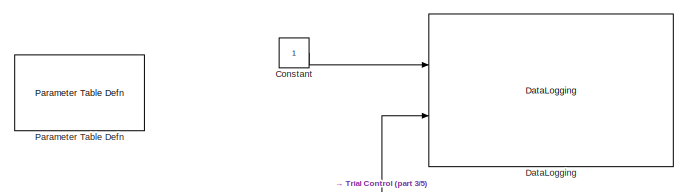
[diagram: root canvas - part 1/5, top center region]
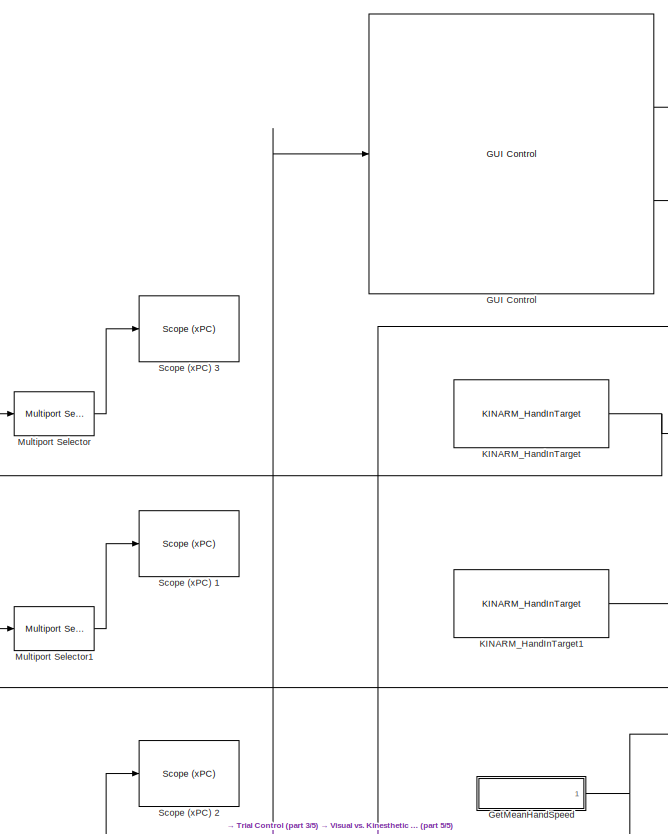
[diagram: root canvas - part 2/5, middle left region]
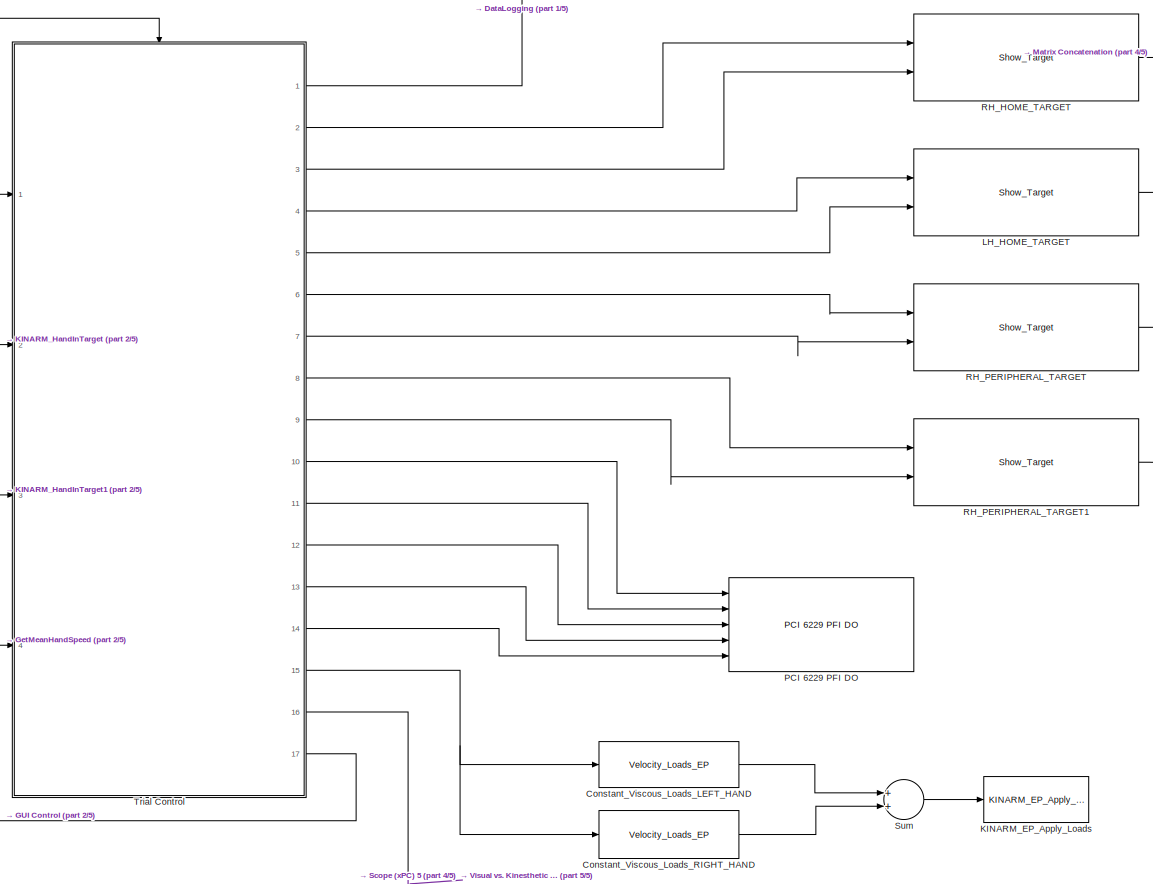
[diagram: root canvas - part 3/5, central region]
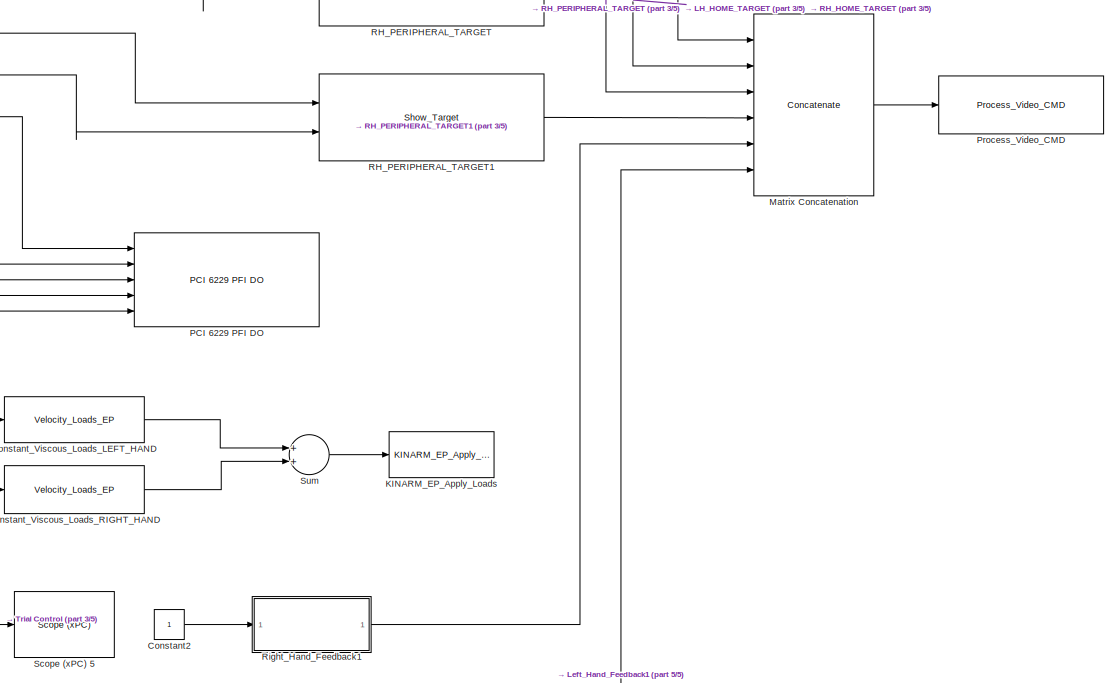
[diagram: root canvas - part 4/5, middle right region]
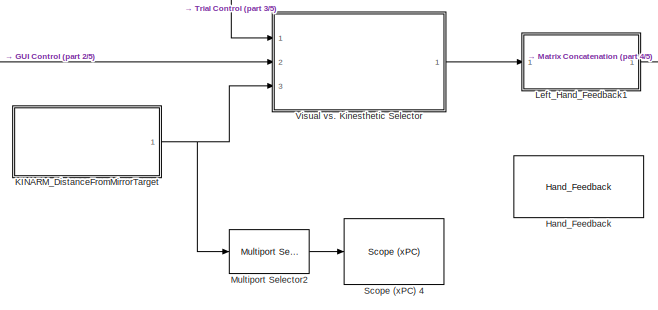
[diagram: root canvas - part 5/5, bottom center region]
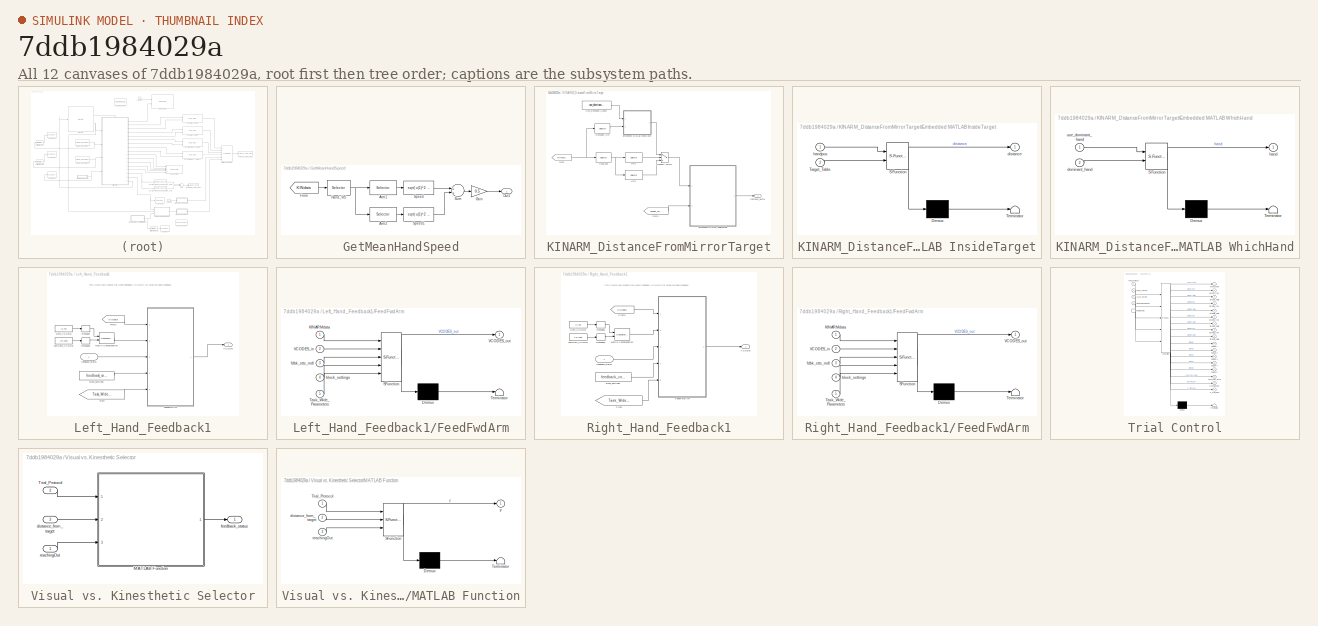
[diagram: thumbnail index - all 12 canvases of the model, root first then tree order]
MODEL slx_7ddb1984029a
KIND model
CONFIG StartFcn =  warndlg('Dexterit-E models cannot run under simulation. Please compile your model and run it from within Dexterit-E.');set_param(bdroot,'SimulationCommand','stop')
WORKSPACE source: MAT-file member
WORKSPACE col_x = 1
BLOCK [Constant] Constant
BLOCK [Constant] Constant2
BLOCK [Reference] Constant_Viscous_Loads_LEFT_HAND  REF=KINARM_EP_loads/Velocity_Loads_EP
  Ports = [1, 1]
  SourceBlock = KINARM_EP_loads/Velocity_Loads_EP
  SourceType = Velocity_Loads_EP
  loadcol = [1 0 0 4]
  scaling = 1
  source = dialog
  stability = off
  use_dom_hand = off
BLOCK [Reference] Constant_Viscous_Loads_RIGHT_HAND  REF=KINARM_EP_loads/Velocity_Loads_EP
  Ports = [1, 1]
  SourceBlock = KINARM_EP_loads/Velocity_Loads_EP
  SourceType = Velocity_Loads_EP
  loadcol = [1 0 0 4]
  scaling = 1
  source = dialog
  stability = off
  use_dom_hand = on
BLOCK [Reference] DataLogging  REF=General/DataLogging
  Ports = [2]
  SourceBlock = General/DataLogging
  SourceType = DataLogging
  log_analog_inputs = off
  log_event_codes = on
BLOCK [Reference] GUI Control  REF=General/GUI Control
  Lcols = 4
  Ports = [1, 2]
  SourceBlock = General/GUI Control
  SourceType = GUI Control
  Target_Type = 1
  Vcols = 3
  XYcols = [1 2]
  indices_padding = [0 0 0 0;0 0 0 0]
  show_repeat_trial_flag = off
  target_type_str = Circle
  task_version = 1.0
BLOCK [SubSystem] GetMeanHandSpeed
  FunctionWithSeparateData = off
  MaskHideContents = off
  MinAlgLoopOccurrences = off
  Opaque = off
  Ports = [0, 1]
  PropExecContextOutsideSubsystem = off
  RTWSystemCode = Auto
  RequestExecContextInheritance = off
BLOCK [Selector] GetMeanHandSpeed/Arm1
  IndexOptions = Index vector (dialog),Select all
  Indices = 1,-1
  InputPortWidth = 3
  NumberOfDimensions = 2
  OutputSizes = 1
  Ports = [1, 1]
BLOCK [Selector] GetMeanHandSpeed/Arm2
  IndexOptions = Index vector (dialog),Select all
  Indices = 2,-1
  InputPortWidth = 3
  NumberOfDimensions = 2
  OutputSizes = 1
  Ports = [1, 1]
BLOCK [From] GetMeanHandSpeed/From
  CloseFcn = tagdialog Close
  GotoTag = KINdata
  TagVisibility = global
BLOCK [Gain] GetMeanHandSpeed/Gain
  Gain = 0.5
  OutDataTypeStr = Inherit: Inherit via internal rule
  ParamDataTypeStr = Inherit: Inherit via internal rule
  SaturateOnIntegerOverflow = off
BLOCK [Selector] GetMeanHandSpeed/Hand_Vel
  IndexOptions = Select all,Index vector (dialog)
  Indices = -1,[25,26]
  InputPortWidth = 3
  NumberOfDimensions = 2
  OutputSizes = 1
  Ports = [1, 1]
BLOCK [Outport] GetMeanHandSpeed/Out1
  IconDisplay = Port number
BLOCK [Fcn] GetMeanHandSpeed/Speed
  Expr = sqrt( u(1)^2 + u(2)^2 )
BLOCK [Fcn] GetMeanHandSpeed/Speed1
  Expr = sqrt( u(1)^2 + u(2)^2 )
BLOCK [Sum] GetMeanHandSpeed/Sum
  InputSameDT = off
  OutDataTypeStr = Inherit: Inherit via internal rule
  Ports = [2, 1]
  SaturateOnIntegerOverflow = off
BLOCK [Reference] Hand_Feedback  REF=KINARM_general/Hand_Feedback
  Ports = [1, 1]
  SourceBlock = KINARM_general/Hand_Feedback
  SourceType = Hand Feedback
  feedback_cntl_src = status only
BLOCK [SubSystem] KINARM_DistanceFromMirrorTarget
  AncestorBlock = KINARM_general/KINARM_DistanceFromTarget
  FunctionWithSeparateData = off
  MaskHideContents = off
  MinAlgLoopOccurrences = off
  Opaque = off
  Ports = [0, 1]
  PropExecContextOutsideSubsystem = off
  RTWSystemCode = Auto
  RequestExecContextInheritance = off
BLOCK [Selector] KINARM_DistanceFromMirrorTarget/Arm1
  IndexOptions = Index vector (dialog),Select all
  Indices = 1,-1
  InputPortWidth = 3
  NumberOfDimensions = 2
  OutputSizes = slselsubs([(-2),(-2)],1),slselsubs([(-2),(-2)],2)
  Ports = [1, 1]
BLOCK [Selector] KINARM_DistanceFromMirrorTarget/Arm2
  IndexOptions = Index vector (dialog),Select all
  Indices = 2,-1
  InputPortWidth = 3
  NumberOfDimensions = 2
  OutputSizes = slselsubs([(-2),(-2)],1),slselsubs([(-2),(-2)],2)
  Ports = [1, 1]
BLOCK [Outport] KINARM_DistanceFromMirrorTarget/Distance_Vector
  IconDisplay = Port number
BLOCK [Selector] KINARM_DistanceFromMirrorTarget/Dominant_Arm
  IndexOptions = Index vector (dialog),Index vector (dialog)
  Indices = [3],[1]
  InputPortWidth = 3
  NumberOfDimensions = 2
  OutputSizes = slselsubs([(-2),(-2)],1),slselsubs([(-2),(-2)],2)
  Ports = [1, 1]
BLOCK [SubSystem] KINARM_DistanceFromMirrorTarget/Embedded MATLAB InsideTarget
  ErrorFcn = Stateflow.Translate.translate
  FunctionWithSeparateData = off
  MaskHideContents = off
  MinAlgLoopOccurrences = off
  Opaque = off
  PermitHierarchicalResolution = ExplicitOnly
  Ports = [2, 1]
  PropExecContextOutsideSubsystem = off
  RTWSystemCode = Auto
  RequestExecContextInheritance = off
  SFBlockType = MATLAB Function
  TreatAsAtomicUnit = on
BLOCK [Demux] KINARM_DistanceFromMirrorTarget/Embedded MATLAB InsideTarget/ Demux 
  Outputs = 1
  Ports = [1, 1]
BLOCK [S-Function] KINARM_DistanceFromMirrorTarget/Embedded MATLAB InsideTarget/ SFunction 
  EnableBusSupport = on
  FunctionName = sf_sfun
  PortCounts = [2 2]
  Ports = [2, 2]
  Tag = Stateflow S-Function Phil_Basic_Int_Task_EEG 16
BLOCK [Terminator] KINARM_DistanceFromMirrorTarget/Embedded MATLAB InsideTarget/ Terminator 
BLOCK [Inport] KINARM_DistanceFromMirrorTarget/Embedded MATLAB InsideTarget/Target_Table
  IconDisplay = Port number
  Port = 2
BLOCK [Outport] KINARM_DistanceFromMirrorTarget/Embedded MATLAB InsideTarget/distance
  IconDisplay = Port number
BLOCK [Inport] KINARM_DistanceFromMirrorTarget/Embedded MATLAB InsideTarget/handpos
  IconDisplay = Port number
BLOCK [SubSystem] KINARM_DistanceFromMirrorTarget/Embedded MATLAB WhichHand
  ErrorFcn = Stateflow.Translate.translate
  FunctionWithSeparateData = off
  MaskHideContents = off
  MinAlgLoopOccurrences = off
  Opaque = off
  PermitHierarchicalResolution = ExplicitOnly
  Ports = [2, 1]
  PropExecContextOutsideSubsystem = off
  RTWSystemCode = Auto
  RequestExecContextInheritance = off
  SFBlockType = MATLAB Function
  TreatAsAtomicUnit = on
BLOCK [Demux] KINARM_DistanceFromMirrorTarget/Embedded MATLAB WhichHand/ Demux 
  Outputs = 1
  Ports = [1, 1]
BLOCK [S-Function] KINARM_DistanceFromMirrorTarget/Embedded MATLAB WhichHand/ SFunction 
  EnableBusSupport = on
  FunctionName = sf_sfun
  PortCounts = [2 2]
  Ports = [2, 2]
  Tag = Stateflow S-Function Phil_Basic_Int_Task_EEG 17
BLOCK [Terminator] KINARM_DistanceFromMirrorTarget/Embedded MATLAB WhichHand/ Terminator 
BLOCK [Inport] KINARM_DistanceFromMirrorTarget/Embedded MATLAB WhichHand/dominant_hand
  IconDisplay = Port number
  Port = 2
BLOCK [Outport] KINARM_DistanceFromMirrorTarget/Embedded MATLAB WhichHand/hand
  IconDisplay = Port number
BLOCK [Inport] KINARM_DistanceFromMirrorTarget/Embedded MATLAB WhichHand/use_dominant_hand
  IconDisplay = Port number
BLOCK [From] KINARM_DistanceFromMirrorTarget/From
  CloseFcn = tagdialog Close
  GotoTag = KINdata
  TagVisibility = global
BLOCK [From] KINARM_DistanceFromMirrorTarget/From1
  CloseFcn = tagdialog Close
  GotoTag = Target_Table
  TagVisibility = global
BLOCK [Selector] KINARM_DistanceFromMirrorTarget/Hand_Pos
  IndexOptions = Select all,Index vector (dialog)
  Indices = -1,[23,24]
  InputPortWidth = 3
  NumberOfDimensions = 2
  OutputSizes = slselsubs([(-2),(-2)],1),slselsubs([(-2),(-2)],2)
  Ports = [1, 1]
BLOCK [MultiPortSwitch] KINARM_DistanceFromMirrorTarget/Multiport Switch
  InputSameDT = off
  Inputs = 2
  Ports = [3, 1]
  SaturateOnIntegerOverflow = off
BLOCK [Constant] KINARM_DistanceFromMirrorTarget/Use_Dominant_Hand?
  Value = use_dominant_hand
BLOCK [Reference] KINARM_EP_Apply_Loads  REF=KINARM_EP_loads/KINARM_EP_Apply_Loads
  Ports = [1]
  SourceBlock = KINARM_EP_loads/KINARM_EP_Apply_Loads
  SourceType = KINARM_EP_Apply_Loads
  down_duration = 200
  max_force = 60
  up_duration = 200
BLOCK [Reference] KINARM_HandInTarget  REF=KINARM_general/KINARM_HandInTarget
  Ports = [0, 1]
  SourceBlock = KINARM_general/KINARM_HandInTarget
  SourceType = KINARM_HandInTarget
  attribcol1 = [4]
  attribcol2 = [4]
  attribcol3 = [5]
  attribcol4 = [6]
  attribcol5 = [0]
  num_states = 1
  target_type = Circle
  use_dominant_hand = on
BLOCK [Reference] KINARM_HandInTarget1  REF=KINARM_general/KINARM_HandInTarget
  Ports = [0, 1]
  SourceBlock = KINARM_general/KINARM_HandInTarget
  SourceType = KINARM_HandInTarget
  attribcol1 = [4]
  attribcol2 = [4]
  attribcol3 = [5]
  attribcol4 = [6]
  attribcol5 = [0]
  num_states = 1
  target_type = Circle
  use_dominant_hand = off
BLOCK [Reference] LH_HOME_TARGET  REF=Video/Show_Target
  Ports = [2, 1]
  SourceBlock = Video/Show_Target
  SourceType = Show_Target
  attribcol1 = [5 5 0 3]
  attribcol2 = [4 4 0 3]
  attribcol3 = [4 4 0 3]
  attribcol4 = [0 0 0 0]
  attribcol5 = [0 0 24 0]
  num_col = 4
  num_states = 1
  opacity = 100
  source = dialog
  stateindices_padding = [0 0 0 0 0 0 0;0 0 0 0 0 0 0;0 0 0 0 0 0 0;0 0 0 0 0 0 0;0 0 0 0 0 0 0]
  target_display = Both subject and operator displays
  target_type = Circle
BLOCK [SubSystem] Left_Hand_Feedback1
  AncestorBlock = KINARM_general/Hand_Feedback
  FunctionWithSeparateData = off
  MaskHideContents = off
  MinAlgLoopOccurrences = off
  Opaque = off
  Ports = [1, 1]
  PropExecContextOutsideSubsystem = off
  RTWSystemCode = Auto
  RequestExecContextInheritance = off
BLOCK [Constant] Left_Hand_Feedback1/Dom_VCODE
  Value = [1:70]
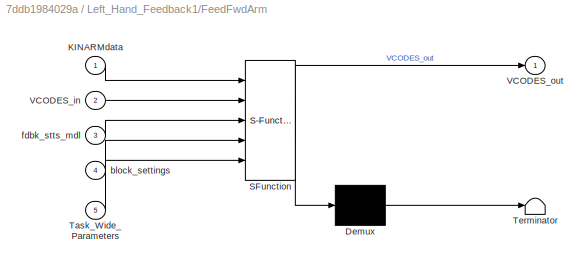
BLOCK [SubSystem] Left_Hand_Feedback1/FeedFwdArm
  ErrorFcn = Stateflow.Translate.translate
  FunctionWithSeparateData = off
  MaskHideContents = off
  MinAlgLoopOccurrences = off
  Opaque = off
  PermitHierarchicalResolution = ExplicitOnly
  Ports = [5, 1]
  PropExecContextOutsideSubsystem = off
  RTWSystemCode = Auto
  RequestExecContextInheritance = off
  SFBlockType = MATLAB Function
  TreatAsAtomicUnit = on
BLOCK [Demux] Left_Hand_Feedback1/FeedFwdArm/ Demux 
  Outputs = 1
  Ports = [1, 1]
BLOCK [S-Function] Left_Hand_Feedback1/FeedFwdArm/ SFunction 
  EnableBusSupport = on
  FunctionName = sf_sfun
  PortCounts = [5 2]
  Ports = [5, 2]
  Tag = Stateflow S-Function Phil_Basic_Int_Task_EEG 19
BLOCK [Terminator] Left_Hand_Feedback1/FeedFwdArm/ Terminator 
BLOCK [Inport] Left_Hand_Feedback1/FeedFwdArm/KINARMdata
  IconDisplay = Port number
BLOCK [Inport] Left_Hand_Feedback1/FeedFwdArm/Task_Wide_Parameters
  IconDisplay = Port number
  Port = 5
BLOCK [Inport] Left_Hand_Feedback1/FeedFwdArm/VCODES_in
  IconDisplay = Port number
  Port = 2
BLOCK [Outport] Left_Hand_Feedback1/FeedFwdArm/VCODES_out
  IconDisplay = Port number
BLOCK [Inport] Left_Hand_Feedback1/FeedFwdArm/block_settings
  IconDisplay = Port number
  Port = 4
BLOCK [Inport] Left_Hand_Feedback1/FeedFwdArm/fdbk_stts_mdl
  IconDisplay = Port number
  Port = 3
BLOCK [From] Left_Hand_Feedback1/From
  GotoTag = Task_Wide_Parameters
  TagVisibility = global
BLOCK [From] Left_Hand_Feedback1/From1
  CloseFcn = tagdialog Close
  GotoTag = KINdata
  TagVisibility = global
BLOCK [Concatenate] Left_Hand_Feedback1/Matrix Concatenation
  Mode = Multidimensional array
  Ports = [2, 1]
BLOCK [Reshape] Left_Hand_Feedback1/Reshape
  OutputDimensionality = Row vector (2-D)
  Ports = [1, 1]
BLOCK [Reshape] Left_Hand_Feedback1/Reshape1
  OutputDimensionality = Row vector (2-D)
  Ports = [1, 1]
BLOCK [Outport] Left_Hand_Feedback1/VCODE
  IconDisplay = Port number
BLOCK [Constant] Left_Hand_Feedback1/block_settings
  Value = feedback_cntl_src
BLOCK [Inport] Left_Hand_Feedback1/feedback_status
  IconDisplay = Port number
BLOCK [Constant] Left_Hand_Feedback1/non-Dom_VCODE
  Value = [71:140]
BLOCK [Concatenate] Matrix Concatenation
  Mode = Multidimensional array
  NumInputs = 6
  Ports = [6, 1]
BLOCK [Reference] Multiport Selector  REF=dspindex/Multiport
Selector
  Ports = [1, 1]
  SourceBlock = dspindex/Multiport\nSelector
  SourceType = Multiport Selector
  idxCellArray = { 1:6 }
  idxErrMode = Clip Index
  rowsOrCols = Rows
BLOCK [Reference] Multiport Selector1  REF=dspindex/Multiport
Selector
  Ports = [1, 1]
  SourceBlock = dspindex/Multiport\nSelector
  SourceType = Multiport Selector
  idxCellArray = { 1:6 }
  idxErrMode = Clip Index
  rowsOrCols = Rows
BLOCK [Reference] Multiport Selector2  REF=dspindex/Multiport
Selector
  Ports = [1, 1]
  SourceBlock = dspindex/Multiport\nSelector
  SourceType = Multiport Selector
  idxCellArray = { 0:6 }
  idxErrMode = Clip Index
  rowsOrCols = Rows
BLOCK [Reference] PCI 6229 PFI DO   REF=xpcnilib/Digital
Output/M Series/PCI 6229 PFI DO 
  Ports = [5]
  SourceBlock = xpcnilib/Digital\nOutput/M Series/PCI 6229 PFI DO
  SourceType = pfioutnipci6229
  channel = [1,2,3,4,5]
  initial = [0,0,0,0,0]
  reset = [1]
  sampleTime = 0.001
  slot = -1
BLOCK [Reference] Parameter Table Defn  REF=General/Parameter Table Defn
  Ports = []
  ShowInLibBrowser = 0
  SourceBlock = General/Parameter Table Defn
  UserDataPersistent = on
BLOCK [Reference] Process_Video_CMD  REF=Video/Process_Video_CMD
  Ports = [1]
  SourceBlock = Video/Process_Video_CMD
  SourceType = Process_Video_CMD
BLOCK [Reference] RH_HOME_TARGET  REF=Video/Show_Target
  Ports = [2, 1]
  SourceBlock = Video/Show_Target
  SourceType = Show_Target
  attribcol1 = [5 5 0 3]
  attribcol2 = [6 6 0 3]
  attribcol3 = [0 0 0 0]
  attribcol4 = [0 0 0 0]
  attribcol5 = [0 0 24 0]
  num_col = 4
  num_states = 1
  opacity = 100
  source = dialog
  stateindices_padding = [0 0 0 0 0 0 0;0 0 0 0 0 0 0;0 0 0 0 0 0 0;0 0 0 0 0 0 0;0 0 0 0 0 0 0]
  target_display = Both subject and operator displays
  target_type = Circle
BLOCK [Reference] RH_PERIPHERAL_TARGET  REF=Video/Show_Target
  Ports = [2, 1]
  SourceBlock = Video/Show_Target
  SourceType = Show_Target
  attribcol1 = [5 5 0 3]
  attribcol2 = [6 6 0 3]
  attribcol3 = [7 7 0 3]
  attribcol4 = [0 0 0 0]
  attribcol5 = [0 0 24 0]
  num_col = 4
  num_states = 3
  opacity = 100
  source = dialog
  stateindices_padding = [0 0 0 0 0 0 0;0 0 0 0 0 0 0;0 0 0 0 0 0 0;0 0 0 0 0 0 0;0 0 0 0 0 0 0]
  target_display = Both subject and operator displays
  target_type = Circle
BLOCK [Reference] RH_PERIPHERAL_TARGET1  REF=Video/Show_Target
  Ports = [2, 1]
  SourceBlock = Video/Show_Target
  SourceType = Show_Target
  attribcol1 = [5 5 0 3]
  attribcol2 = [6 6 0 3]
  attribcol3 = [7 7 0 3]
  attribcol4 = [0 0 0 0]
  attribcol5 = [0 0 24 0]
  num_col = 4
  num_states = 3
  opacity = 100
  source = dialog
  stateindices_padding = [0 0 0 0 0 0 0;0 0 0 0 0 0 0;0 0 0 0 0 0 0;0 0 0 0 0 0 0;0 0 0 0 0 0 0]
  target_display = Both subject and operator displays
  target_type = Circle
BLOCK [SubSystem] Right_Hand_Feedback1
  AncestorBlock = KINARM_general/Hand_Feedback
  FunctionWithSeparateData = off
  MaskHideContents = off
  MinAlgLoopOccurrences = off
  Opaque = off
  Ports = [1, 1]
  PropExecContextOutsideSubsystem = off
  RTWSystemCode = Auto
  RequestExecContextInheritance = off
BLOCK [Constant] Right_Hand_Feedback1/Dom_VCODE
  Value = [1:70]
BLOCK [SubSystem] Right_Hand_Feedback1/FeedFwdArm
  ErrorFcn = Stateflow.Translate.translate
  FunctionWithSeparateData = off
  MaskHideContents = off
  MinAlgLoopOccurrences = off
  Opaque = off
  PermitHierarchicalResolution = ExplicitOnly
  Ports = [5, 1]
  PropExecContextOutsideSubsystem = off
  RTWSystemCode = Auto
  RequestExecContextInheritance = off
  SFBlockType = MATLAB Function
  TreatAsAtomicUnit = on
BLOCK [Demux] Right_Hand_Feedback1/FeedFwdArm/ Demux 
  Outputs = 1
  Ports = [1, 1]
BLOCK [S-Function] Right_Hand_Feedback1/FeedFwdArm/ SFunction 
  EnableBusSupport = on
  FunctionName = sf_sfun
  PortCounts = [5 2]
  Ports = [5, 2]
  Tag = Stateflow S-Function Phil_Basic_Int_Task_EEG 21
BLOCK [Terminator] Right_Hand_Feedback1/FeedFwdArm/ Terminator 
BLOCK [Inport] Right_Hand_Feedback1/FeedFwdArm/KINARMdata
  IconDisplay = Port number
BLOCK [Inport] Right_Hand_Feedback1/FeedFwdArm/Task_Wide_Parameters
  IconDisplay = Port number
  Port = 5
BLOCK [Inport] Right_Hand_Feedback1/FeedFwdArm/VCODES_in
  IconDisplay = Port number
  Port = 2
BLOCK [Outport] Right_Hand_Feedback1/FeedFwdArm/VCODES_out
  IconDisplay = Port number
BLOCK [Inport] Right_Hand_Feedback1/FeedFwdArm/block_settings
  IconDisplay = Port number
  Port = 4
BLOCK [Inport] Right_Hand_Feedback1/FeedFwdArm/fdbk_stts_mdl
  IconDisplay = Port number
  Port = 3
BLOCK [From] Right_Hand_Feedback1/From
  GotoTag = Task_Wide_Parameters
  TagVisibility = global
BLOCK [From] Right_Hand_Feedback1/From1
  CloseFcn = tagdialog Close
  GotoTag = KINdata
  TagVisibility = global
BLOCK [Concatenate] Right_Hand_Feedback1/Matrix Concatenation
  Mode = Multidimensional array
  Ports = [2, 1]
BLOCK [Reshape] Right_Hand_Feedback1/Reshape
  OutputDimensionality = Row vector (2-D)
  Ports = [1, 1]
BLOCK [Reshape] Right_Hand_Feedback1/Reshape1
  OutputDimensionality = Row vector (2-D)
  Ports = [1, 1]
BLOCK [Outport] Right_Hand_Feedback1/VCODE
  IconDisplay = Port number
BLOCK [Constant] Right_Hand_Feedback1/block_settings
  Value = feedback_cntl_src
BLOCK [Inport] Right_Hand_Feedback1/feedback_status
  IconDisplay = Port number
BLOCK [Constant] Right_Hand_Feedback1/non-Dom_VCODE
  Value = [71:140]
BLOCK [Reference] Scope (xPC) 1  REF=xpclib/Misc./Scope (xPC) 
  Ports = [1]
  SourceBlock = xpclib/Misc./Scope (xPC)
  SourceType = xpcscopeblock
  autorestart = off
  autostart = on
  dynamicfilemode = off
  filename = data.dat
  formatstr = '%15.6f'
  grid = on
  interleave = 1
  maxwritefilesize = 512*1024^2
  mode = Lazy
  noprepostsamples = 0
  nosamples = 250
  scopeno = 2
  scopetype = Target
  triggerlevel = 0.0
  triggermode = FreeRun
  triggersample = 0
  triggerscope = 1
  triggersignal = 1
  triggerslope = Either
  trigsignalfromport = off
  viewmode = Numerical
  writesize = 512
  ylimits = [0,0]
BLOCK [Reference] Scope (xPC) 2  REF=xpclib/Misc./Scope (xPC) 
  Ports = [1]
  SourceBlock = xpclib/Misc./Scope (xPC)
  SourceType = xpcscopeblock
  autorestart = off
  autostart = on
  dynamicfilemode = off
  filename = data.dat
  formatstr = '%15.6f'
  grid = on
  interleave = 1
  maxwritefilesize = 512*1024^2
  mode = Lazy
  noprepostsamples = 0
  nosamples = 250
  scopeno = 3
  scopetype = Target
  triggerlevel = 0.0
  triggermode = FreeRun
  triggersample = 0
  triggerscope = 1
  triggersignal = 1
  triggerslope = Either
  trigsignalfromport = off
  viewmode = Numerical
  writesize = 512
  ylimits = [0,0]
BLOCK [Reference] Scope (xPC) 3  REF=xpclib/Misc./Scope (xPC) 
  Ports = [1]
  SourceBlock = xpclib/Misc./Scope (xPC)
  SourceType = xpcscopeblock
  autorestart = off
  autostart = on
  dynamicfilemode = off
  filename = data.dat
  formatstr = '%15.6f'
  grid = on
  interleave = 1
  maxwritefilesize = 512*1024^2
  mode = Lazy
  noprepostsamples = 0
  nosamples = 250
  scopeno = 1
  scopetype = Target
  triggerlevel = 0.0
  triggermode = FreeRun
  triggersample = 0
  triggerscope = 1
  triggersignal = 1
  triggerslope = Either
  trigsignalfromport = off
  viewmode = Numerical
  writesize = 512
  ylimits = [0,0]
BLOCK [Reference] Scope (xPC) 4  REF=xpclib/Misc./Scope (xPC) 
  Ports = [1]
  SourceBlock = xpclib/Misc./Scope (xPC)
  SourceType = xpcscopeblock
  autorestart = off
  autostart = on
  dynamicfilemode = off
  filename = data.dat
  formatstr = '%15.6f'
  grid = on
  interleave = 1
  maxwritefilesize = 512*1024^2
  mode = Lazy
  noprepostsamples = 0
  nosamples = 250
  scopeno = 4
  scopetype = Target
  triggerlevel = 0.0
  triggermode = FreeRun
  triggersample = 0
  triggerscope = 1
  triggersignal = 1
  triggerslope = Either
  trigsignalfromport = off
  viewmode = Numerical
  writesize = 512
  ylimits = [0,0]
BLOCK [Reference] Scope (xPC) 5  REF=xpclib/Misc./Scope (xPC) 
  Ports = [1]
  SourceBlock = xpclib/Misc./Scope (xPC)
  SourceType = xpcscopeblock
  autorestart = off
  autostart = on
  dynamicfilemode = off
  filename = data.dat
  formatstr = '%15.6f'
  grid = on
  interleave = 1
  maxwritefilesize = 512*1024^2
  mode = Lazy
  noprepostsamples = 0
  nosamples = 250
  scopeno = 5
  scopetype = Target
  triggerlevel = 0.0
  triggermode = FreeRun
  triggersample = 0
  triggerscope = 1
  triggersignal = 1
  triggerslope = Either
  trigsignalfromport = off
  viewmode = Numerical
  writesize = 512
  ylimits = [0,0]
BLOCK [Sum] Sum
  InputSameDT = off
  OutDataTypeStr = Inherit: Inherit via internal rule
  Ports = [2, 1]
  SaturateOnIntegerOverflow = off
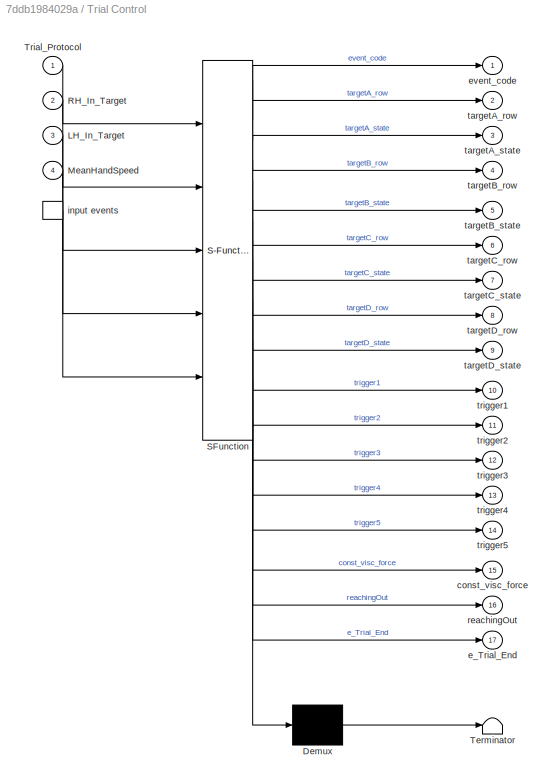
BLOCK [SubSystem] Trial Control
  ErrorFcn = Stateflow.Translate.translate
  FunctionWithSeparateData = off
  MaskHideContents = off
  MinAlgLoopOccurrences = off
  Opaque = off
  PermitHierarchicalResolution = ExplicitOnly
  Ports = [4, 17, 0, 1]
  PropExecContextOutsideSubsystem = off
  RTWSystemCode = Auto
  RequestExecContextInheritance = off
  SFBlockType = Chart
  TreatAsAtomicUnit = on
BLOCK [Demux] Trial Control/ Demux 
  Outputs = 1
  Ports = [1, 1]
BLOCK [S-Function] Trial Control/ SFunction 
  EnableBusSupport = on
  FunctionName = sf_sfun
  PortCounts = [5 18]
  Ports = [5, 18]
  Tag = Stateflow S-Function Phil_Basic_Int_Task_EEG 2
BLOCK [Terminator] Trial Control/ Terminator 
BLOCK [TriggerPort] Trial Control/ input events 
  Ports = [0, 1]
  ShowOutputPort = on
  TriggerType = either
BLOCK [Inport] Trial Control/LH_In_Target
  IconDisplay = Port number
  Port = 3
BLOCK [Inport] Trial Control/MeanHandSpeed
  IconDisplay = Port number
  Port = 4
BLOCK [Inport] Trial Control/RH_In_Target
  IconDisplay = Port number
  Port = 2
BLOCK [Inport] Trial Control/Trial_Protocol
  IconDisplay = Port number
BLOCK [Outport] Trial Control/const_visc_force
  IconDisplay = Port number
  Port = 15
BLOCK [Outport] Trial Control/e_Trial_End
  IconDisplay = Port number
  Port = 17
BLOCK [Outport] Trial Control/event_code
  IconDisplay = Port number
BLOCK [Outport] Trial Control/reachingOut
  IconDisplay = Port number
  Port = 16
BLOCK [Outport] Trial Control/targetA_row
  IconDisplay = Port number
  Port = 2
BLOCK [Outport] Trial Control/targetA_state
  IconDisplay = Port number
  Port = 3
BLOCK [Outport] Trial Control/targetB_row
  IconDisplay = Port number
  Port = 4
BLOCK [Outport] Trial Control/targetB_state
  IconDisplay = Port number
  Port = 5
BLOCK [Outport] Trial Control/targetC_row
  IconDisplay = Port number
  Port = 6
BLOCK [Outport] Trial Control/targetC_state
  IconDisplay = Port number
  Port = 7
BLOCK [Outport] Trial Control/targetD_row
  IconDisplay = Port number
  Port = 8
BLOCK [Outport] Trial Control/targetD_state
  IconDisplay = Port number
  Port = 9
BLOCK [Outport] Trial Control/trigger1
  IconDisplay = Port number
  Port = 10
BLOCK [Outport] Trial Control/trigger2
  IconDisplay = Port number
  Port = 11
BLOCK [Outport] Trial Control/trigger3
  IconDisplay = Port number
  Port = 12
BLOCK [Outport] Trial Control/trigger4
  IconDisplay = Port number
  Port = 13
BLOCK [Outport] Trial Control/trigger5
  IconDisplay = Port number
  Port = 14
BLOCK [SubSystem] Visual vs. Kinesthetic Selector
  Description = Select Visual or Kinesthetic for non-dominant hand
  FunctionWithSeparateData = off
  MaskHideContents = off
  MinAlgLoopOccurrences = off
  Opaque = off
  Ports = [3, 1]
  PropExecContextOutsideSubsystem = off
  RTWSystemCode = Auto
  RequestExecContextInheritance = off
  Tag = Visual vs. Kinesthetic
BLOCK [SubSystem] Visual vs. Kinesthetic Selector/MATLAB Function
  ErrorFcn = Stateflow.Translate.translate
  FunctionWithSeparateData = off
  MaskHideContents = off
  MinAlgLoopOccurrences = off
  Opaque = off
  PermitHierarchicalResolution = ExplicitOnly
  Ports = [3, 1]
  PropExecContextOutsideSubsystem = off
  RTWSystemCode = Auto
  RequestExecContextInheritance = off
  SFBlockType = MATLAB Function
  TreatAsAtomicUnit = on
BLOCK [Demux] Visual vs. Kinesthetic Selector/MATLAB Function/ Demux 
  Outputs = 1
  Ports = [1, 1]
BLOCK [S-Function] Visual vs. Kinesthetic Selector/MATLAB Function/ SFunction 
  EnableBusSupport = on
  FunctionName = sf_sfun
  PortCounts = [3 2]
  Ports = [3, 2]
  Tag = Stateflow S-Function Phil_Basic_Int_Task_EEG 15
BLOCK [Terminator] Visual vs. Kinesthetic Selector/MATLAB Function/ Terminator 
BLOCK [Inport] Visual vs. Kinesthetic Selector/MATLAB Function/Trial_Protocol
  IconDisplay = Port number
BLOCK [Inport] Visual vs. Kinesthetic Selector/MATLAB Function/distance_from_target
  IconDisplay = Port number
  Port = 2
BLOCK [Inport] Visual vs. Kinesthetic Selector/MATLAB Function/reachingOut
  IconDisplay = Port number
  Port = 3
BLOCK [Outport] Visual vs. Kinesthetic Selector/MATLAB Function/y
  IconDisplay = Port number
BLOCK [Inport] Visual vs. Kinesthetic Selector/Trial_Protocol
  IconDisplay = Port number
  Port = 2
BLOCK [Inport] Visual vs. Kinesthetic Selector/distance_from_target
  IconDisplay = Port number
  Port = 3
BLOCK [Outport] Visual vs. Kinesthetic Selector/feedback_status
  IconDisplay = Port number
BLOCK [Inport] Visual vs. Kinesthetic Selector/reachingOut
  IconDisplay = Port number
ANNOTATION Left_Hand_Feedback1: This Sub-Block creates the Hand Feedback VCODEs for drawing hand feedback
ANNOTATION Right_Hand_Feedback1: This Sub-Block creates the Hand Feedback VCODEs for drawing hand feedback
LINE Constant2:1 -> Right_Hand_Feedback1:1
LINE Constant:1 -> DataLogging:1
LINE Constant_Viscous_Loads_LEFT_HAND:1 -> Sum:1
LINE Constant_Viscous_Loads_RIGHT_HAND:1 -> Sum:2
LINE GUI Control:1 -> Trial Control:trigger
NET GUI Control:2 -> Trial Control:1, Visual vs. Kinesthetic Selector:2
LINE GetMeanHandSpeed/Arm1:1 -> GetMeanHandSpeed/Speed:1
LINE GetMeanHandSpeed/Arm2:1 -> GetMeanHandSpeed/Speed1:1
LINE GetMeanHandSpeed/From:1 -> GetMeanHandSpeed/Hand_Vel:1
LINE GetMeanHandSpeed/Gain:1 -> GetMeanHandSpeed/Out1:1
NET GetMeanHandSpeed/Hand_Vel:1 -> GetMeanHandSpeed/Arm1:1, GetMeanHandSpeed/Arm2:1
LINE GetMeanHandSpeed/Speed1:1 -> GetMeanHandSpeed/Sum:2
LINE GetMeanHandSpeed/Speed:1 -> GetMeanHandSpeed/Sum:1
LINE GetMeanHandSpeed/Sum:1 -> GetMeanHandSpeed/Gain:1
NET GetMeanHandSpeed:1 -> Scope (xPC) 2:1, Trial Control:4
NET KINARM_DistanceFromMirrorTarget:1 -> Multiport Selector2:1, Visual vs. Kinesthetic Selector:3
NET KINARM_HandInTarget1:1 -> Multiport Selector1:1, Trial Control:3
NET KINARM_HandInTarget:1 -> Multiport Selector:1, Trial Control:2
LINE LH_HOME_TARGET:1 -> Matrix Concatenation:2
LINE Left_Hand_Feedback1:1 -> Matrix Concatenation:6
LINE Matrix Concatenation:1 -> Process_Video_CMD:1
LINE Multiport Selector1:1 -> Scope (xPC) 1:1
LINE Multiport Selector2:1 -> Scope (xPC) 4:1
LINE Multiport Selector:1 -> Scope (xPC) 3:1
LINE RH_HOME_TARGET:1 -> Matrix Concatenation:1
LINE RH_PERIPHERAL_TARGET1:1 -> Matrix Concatenation:4
LINE RH_PERIPHERAL_TARGET:1 -> Matrix Concatenation:3
LINE Right_Hand_Feedback1:1 -> Matrix Concatenation:5
LINE Sum:1 -> KINARM_EP_Apply_Loads:1
LINE Trial Control:1 -> DataLogging:2
LINE Trial Control:10 -> PCI 6229 PFI DO :1
LINE Trial Control:11 -> PCI 6229 PFI DO :2
LINE Trial Control:12 -> PCI 6229 PFI DO :3
LINE Trial Control:13 -> PCI 6229 PFI DO :4
LINE Trial Control:14 -> PCI 6229 PFI DO :5
NET Trial Control:15 -> Constant_Viscous_Loads_LEFT_HAND:1, Constant_Viscous_Loads_RIGHT_HAND:1
NET Trial Control:16 -> Scope (xPC) 5:1, Visual vs. Kinesthetic Selector:1
LINE Trial Control:17 -> GUI Control:1
LINE Trial Control:2 -> RH_HOME_TARGET:1
LINE Trial Control:3 -> RH_HOME_TARGET:2
LINE Trial Control:4 -> LH_HOME_TARGET:1
LINE Trial Control:5 -> LH_HOME_TARGET:2
LINE Trial Control:6 -> RH_PERIPHERAL_TARGET:1
LINE Trial Control:7 -> RH_PERIPHERAL_TARGET:2
LINE Trial Control:8 -> RH_PERIPHERAL_TARGET1:1
LINE Trial Control:9 -> RH_PERIPHERAL_TARGET1:2
LINE Visual vs. Kinesthetic Selector/MATLAB Function:1 -> Visual vs. Kinesthetic Selector/feedback_status:1
LINE Visual vs. Kinesthetic Selector/Trial_Protocol:1 -> Visual vs. Kinesthetic Selector/MATLAB Function:1
LINE Visual vs. Kinesthetic Selector/distance_from_target:1 -> Visual vs. Kinesthetic Selector/MATLAB Function:2
LINE Visual vs. Kinesthetic Selector/reachingOut:1 -> Visual vs. Kinesthetic Selector/MATLAB Function:3
LINE Visual vs. Kinesthetic Selector:1 -> Left_Hand_Feedback1:1
note: NET lines group one-source signal fan-out (src -> all destinations, sorted); 1:1 wires keep LINE
